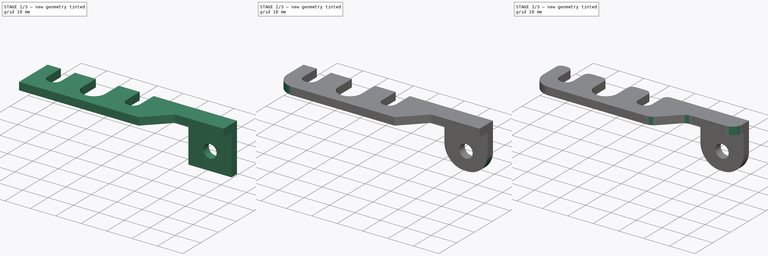
[diagram: build sequence overview — one tinted view per stage of 3, left to right]
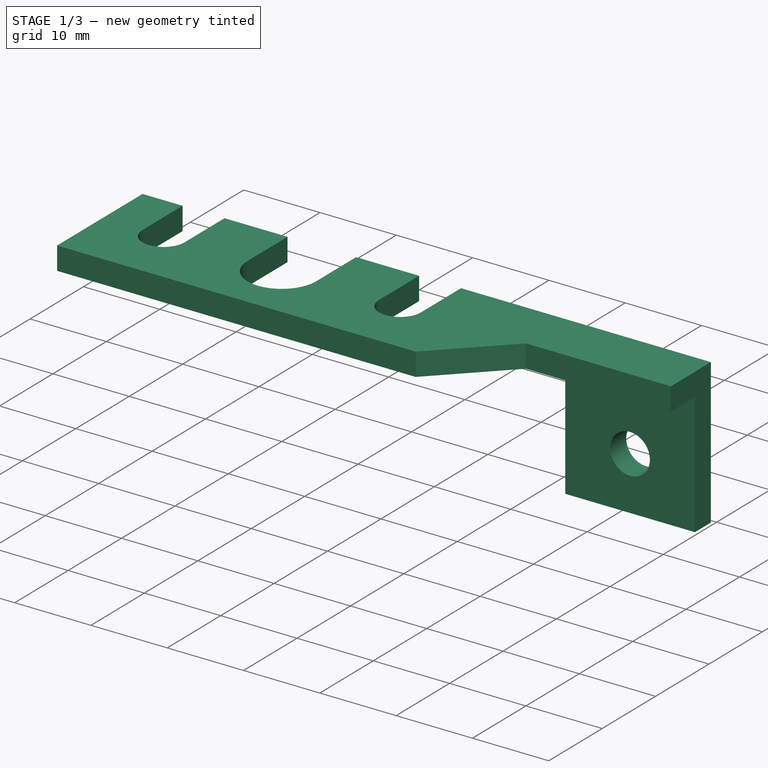
[diagram: stage 1 of 3 — iso view after this stage's code; geometry added in this stage tinted green]
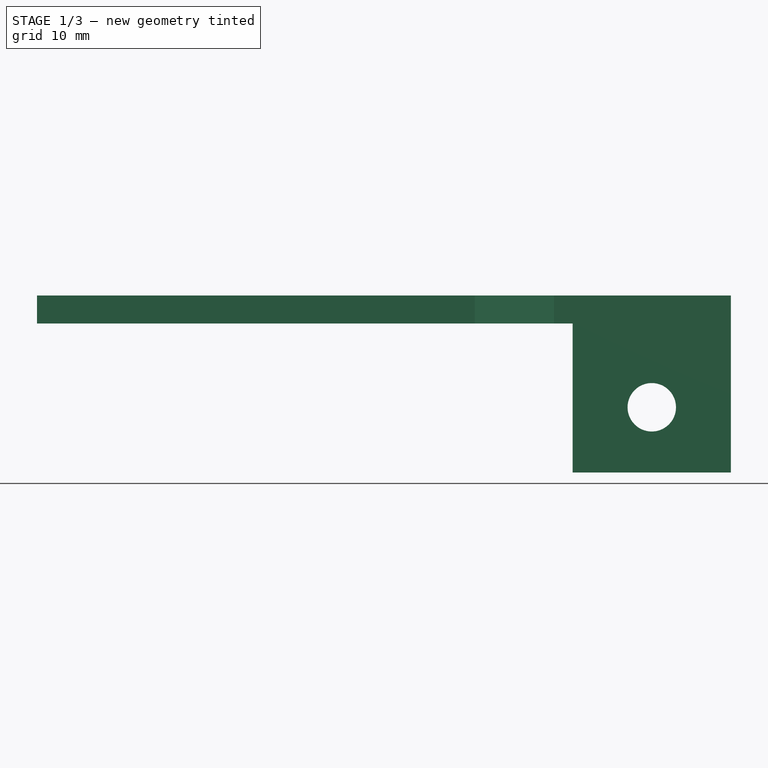
[diagram: stage 1 of 3 — front view after this stage's code; geometry added in this stage tinted green]
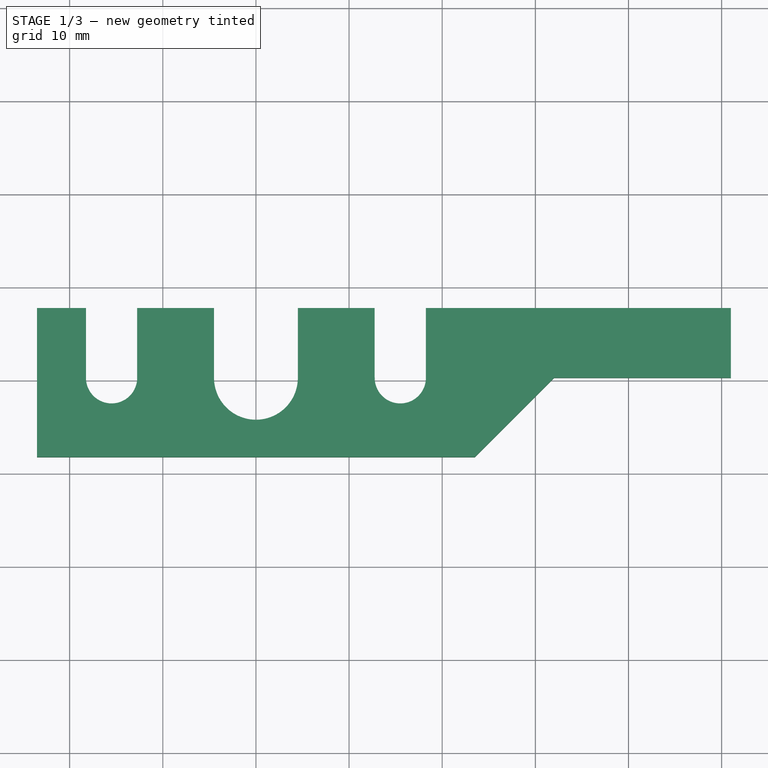
[diagram: stage 1 of 3 — top view after this stage's code; geometry added in this stage tinted green]
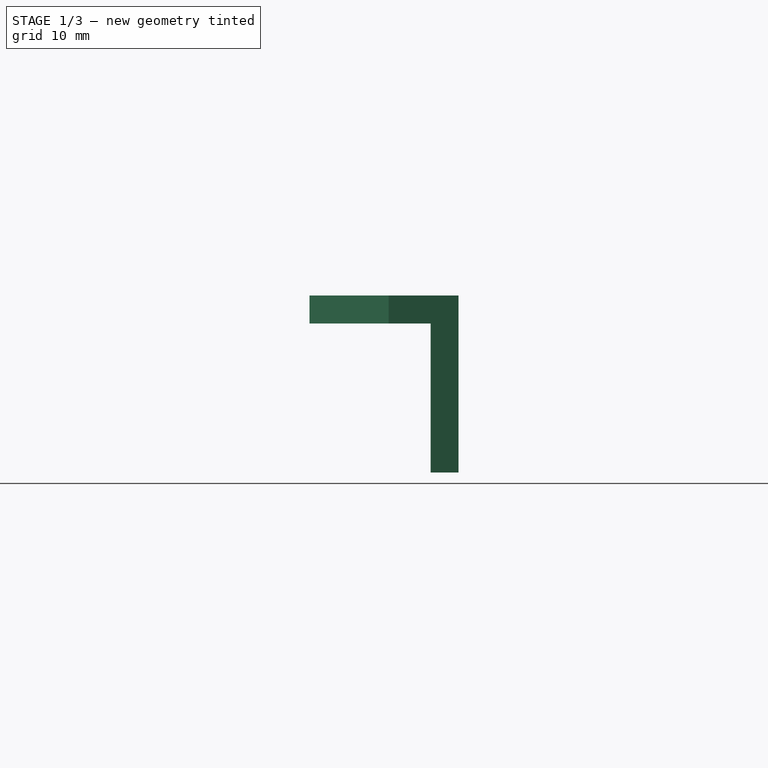
[diagram: stage 1 of 3 — right view after this stage's code; geometry added in this stage tinted green]
FCSTD DOCUMENT  (FreeCAD 0.19R24276 (Git))
Label: Endpoint_holder
License: All rights reserved
LicenseURL: http://en.wikipedia.org/wiki/All_rights_reserved
objects: PartDesign::Fillet×5, Sketcher::SketchObject×3, PartDesign::Pad×2, PartDesign::Pocket×1, PartDesign::Body×1
note: 20 computed .brp shape members not serialized (recipe doc carries the construction recipe); baked Part::Feature solids carry a one-line shape summary decoded from their .brp

FEATURE [Sketcher::SketchObject] Sketch
  FullyConstrained = true
  MapMode = 5
  Support = -> [XY_Plane]
  sketch-geometry (23):
    g0: Circle CenterX=0 CenterY=0 CenterZ=0 NormalX=0 NormalY=0 NormalZ=1 AngleXU=0 Radius=25
    g1: ArcOfCircle CenterX=0 CenterY=0 CenterZ=0 NormalX=0 NormalY=0 NormalZ=1 AngleXU=0 Radius=4.5 StartAngle=3.14159 EndAngle=6.28319
    g2: ArcOfCircle CenterX=-15.5 CenterY=3e-16 CenterZ=0 NormalX=0 NormalY=0 NormalZ=1 AngleXU=0 Radius=2.75 StartAngle=3.14159 EndAngle=6.28319
    g3: ArcOfCircle CenterX=15.5 CenterY=0 CenterZ=0 NormalX=0 NormalY=0 NormalZ=1 AngleXU=0 Radius=2.75 StartAngle=3.14159 EndAngle=6.28319
    g4: LineSegment StartX=-23.5 StartY=7.5 StartZ=0 EndX=-18.25 EndY=7.5 EndZ=0
    g5: LineSegment StartX=-23.5 StartY=7.5 StartZ=0 EndX=-23.5 EndY=-8.5 EndZ=0
    g6: LineSegment StartX=-23.5 StartY=-8.5 StartZ=0 EndX=23.5 EndY=-8.5 EndZ=0
    g7: LineSegment StartX=-18.25 StartY=3e-16 StartZ=0 EndX=-18.25 EndY=7.5 EndZ=0
    g8: LineSegment StartX=-12.75 StartY=3e-16 StartZ=0 EndX=-12.75 EndY=7.5 EndZ=0
    g9: LineSegment StartX=12.75 StartY=0 StartZ=0 EndX=12.75 EndY=7.5 EndZ=0
    g10: LineSegment StartX=18.25 StartY=0 StartZ=0 EndX=18.25 EndY=7.5 EndZ=0
    g11: LineSegment StartX=-15.5 StartY=3e-16 StartZ=0 EndX=-18.25 EndY=3e-16 EndZ=0
    g12: LineSegment StartX=-12.75 StartY=7.5 StartZ=0 EndX=-4.5 EndY=7.5 EndZ=0
    g13: LineSegment StartX=18.25 StartY=7.5 StartZ=0 EndX=51 EndY=7.5 EndZ=0
    g14: LineSegment StartX=15.5 StartY=0 StartZ=0 EndX=18.25 EndY=0 EndZ=0
    g15: LineSegment StartX=15.5 StartY=0 StartZ=0 EndX=12.75 EndY=0 EndZ=0
    g16: LineSegment StartX=-15.5 StartY=3e-16 StartZ=0 EndX=-12.75 EndY=3e-16 EndZ=0
    g17: LineSegment StartX=51 StartY=0 StartZ=0 EndX=51 EndY=7.5 EndZ=0
    g18: LineSegment StartX=23.5 StartY=-8.5 StartZ=0 EndX=32 EndY=0 EndZ=0
    g19: LineSegment StartX=32 StartY=0 StartZ=0 EndX=51 EndY=0 EndZ=0
    g20: LineSegment StartX=-4.5 StartY=-1.1e-15 StartZ=0 EndX=-4.5 EndY=7.5 EndZ=0
    g21: LineSegment StartX=4.5 StartY=-1.1e-15 StartZ=0 EndX=4.5 EndY=7.5 EndZ=0
    g22: LineSegment StartX=4.5 StartY=7.5 StartZ=0 EndX=12.75 EndY=7.5 EndZ=0
  constraints (62):
    c: Coincident(g0,g-1)
    c: Diameter(g0) = 50
    c: Coincident(g1,g-1)
    c: Diameter(g1) = 9
    c: PointOnObject(g2,g-1)
    c: Symmetric(g2,g3,g-1)
    c: Diameter(g2) = 5.5
    c: Equal(g2,g3)
    c: DistanceX(g2,g3) = 31
    c: Horizontal(g4)
    c: Coincident(g5,g4)
    c: Vertical(g5)
    c: Coincident(g6,g5)
    c: Horizontal(g6)
    c: DistanceY(g5,g4) = 16
    c: Vertical(g7)
    c: Vertical(g9)
    c: Vertical(g10)
    c: Coincident(g11,g2)
    c: Coincident(g11,g7)
    c: Horizontal(g11)
    c: Vertical(g8)
    c: Coincident(g4,g7)
    c: Coincident(g12,g8)
    c: Tangent(g4,g12)
    c: Tangent(g12,g13)
    c: Coincident(g9,g22)
    c: Coincident(g10,g13)
    c: Coincident(g14,g3)
    c: Coincident(g14,g10)
    c: Horizontal(g14)
    c: Coincident(g15,g3)
    c: Coincident(g9,g15)
    c: Horizontal(g15)
    c: Coincident(g16,g2)
    c: Coincident(g8,g16)
    c: Horizontal(g16)
    c: DistanceX(g5,g2) = 8
    c: Vertical(g17)
    c: Coincident(g18,g6)
    c: Coincident(g19,g18)
    c: Horizontal(g19)
    c: Coincident(g17,g13)
    c: Coincident(g17,g19)
    c: DistanceX(g-1,g17) = 51
    c: Horizontal(g18,g3)
    c: Angle(g18,g6) = 2.35619
    c: DistanceX(g3,g6) = 8
    c: Vertical(g20)
    c: Vertical(g21)
    c: Horizontal(g20,g21)
    c: Horizontal(g21,g-1)
    c: Tangent(g12,g22)
    c: Coincident(g20,g12)
    c: Coincident(g21,g22)
    c: Coincident(g1,g20)
    c: Coincident(g1,g21)
    c: Coincident(g2,g8)
    c: Coincident(g3,g9)
    c: Coincident(g3,g10)
    c: Coincident(g2,g7)
    c: DistanceY(g5,g2) = 8.5
FEATURE [PartDesign::Pad] Pad
  Direction = (1,1,1)
  Length = 3
  Length2 = 100
  Profile = -> Sketch
  Type = 0
FEATURE [Sketcher::SketchObject] Sketch001
  FullyConstrained = true
  MapMode = 5
  Placement = pos=(0,0,0) rot=(1,0,0;3.14159rad)
  Support = -> [Pad]
  sketch-geometry (4):
    g0: LineSegment StartX=34 StartY=-4.5 StartZ=0 EndX=51 EndY=-4.5 EndZ=0
    g1: LineSegment StartX=51 StartY=-4.5 StartZ=0 EndX=51 EndY=-7.5 EndZ=0
    g2: LineSegment StartX=51 StartY=-7.5 StartZ=0 EndX=34 EndY=-7.5 EndZ=0
    g3: LineSegment StartX=34 StartY=-7.5 StartZ=0 EndX=34 EndY=-4.5 EndZ=0
  constraints (12):
    c: Coincident(g0,g1)
    c: Coincident(g1,g2)
    c: Coincident(g2,g3)
    c: Coincident(g3,g0)
    c: Horizontal(g0)
    c: Horizontal(g2)
    c: Vertical(g1)
    c: Vertical(g3)
    c: DistanceX(g-1,g2) = 34
    c: DistanceX(g-1,g1) = 51
    c: DistanceY(g2,g-1) = 7.5
    c: DistanceY(g2,g0) = 3
FEATURE [PartDesign::Pad] Pad001
  BaseFeature = -> Pad
  Direction = (1,1,1)
  Length = 16
  Length2 = 100
  Profile = -> Sketch001
  Type = 0
FEATURE [Sketcher::SketchObject] Sketch002
  FullyConstrained = true
  MapMode = 5
  Placement = pos=(0,4.5,0) rot=(1,0,0;1.5708rad)
  Support = -> [Pad001]
  sketch-geometry (2):
    g0: Circle CenterX=42.5 CenterY=-9 CenterZ=0 NormalX=0 NormalY=0 NormalZ=1 AngleXU=0 Radius=2.6
    g1: Circle CenterX=42.5 CenterY=-9 CenterZ=0 NormalX=0 NormalY=0 NormalZ=1 AngleXU=0 Radius=4.5
  constraints (5):
    c: Diameter(g0) = 5.2
    c: DistanceX(g-1,g0) = 42.5
    c: DistanceY(g0,g-1) = 9
    c: Coincident(g1,g0)
    c: Diameter(g1) = 9
FEATURE [PartDesign::Pocket] Pocket
  BaseFeature = -> Pad001
  Length = 5
  Length2 = 100
  Profile = -> Sketch002
  Type = 1
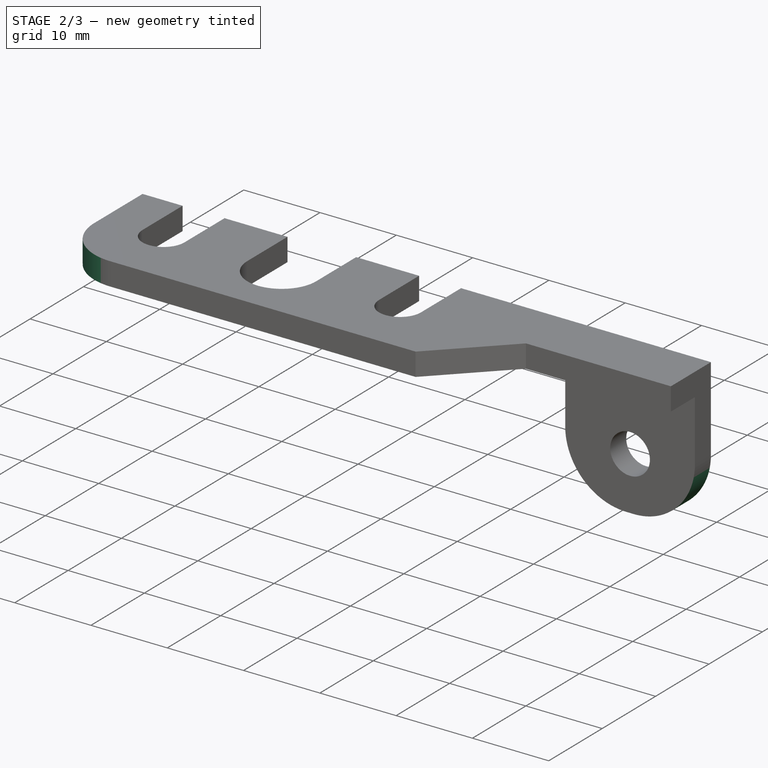
[diagram: stage 2 of 3 — iso view after this stage's code; geometry added in this stage tinted green]
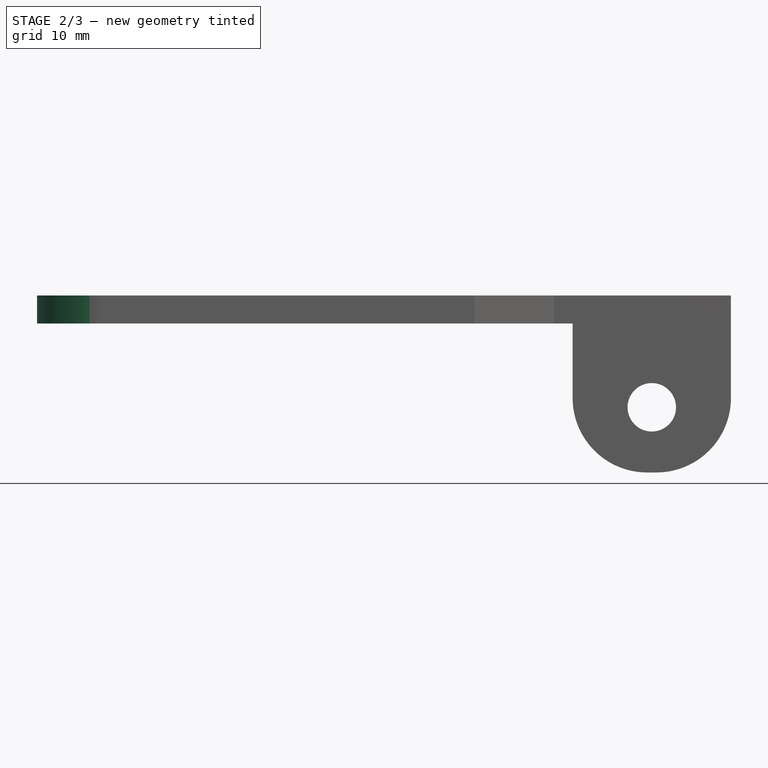
[diagram: stage 2 of 3 — front view after this stage's code; geometry added in this stage tinted green]
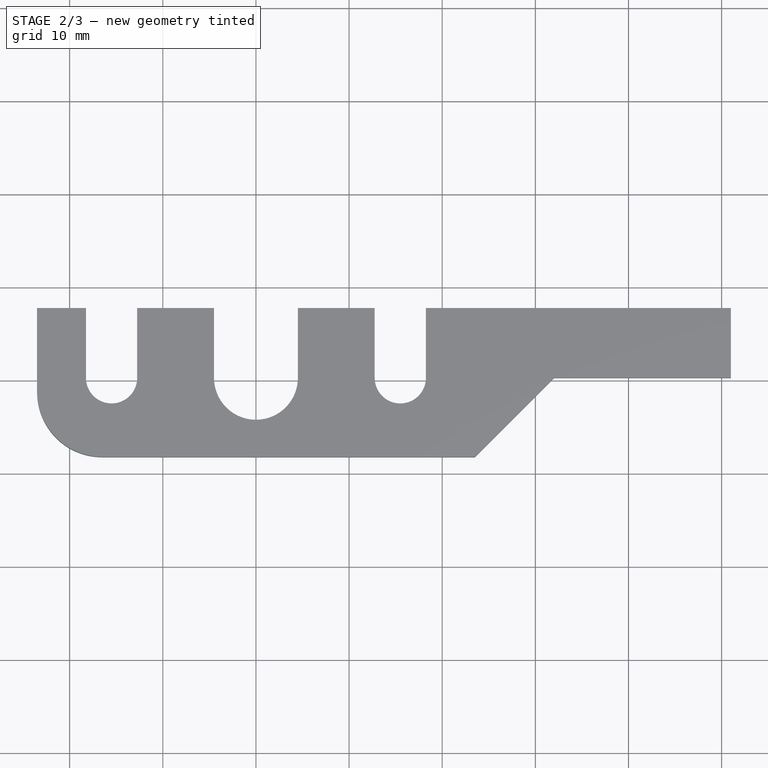
[diagram: stage 2 of 3 — top view after this stage's code; geometry added in this stage tinted green]
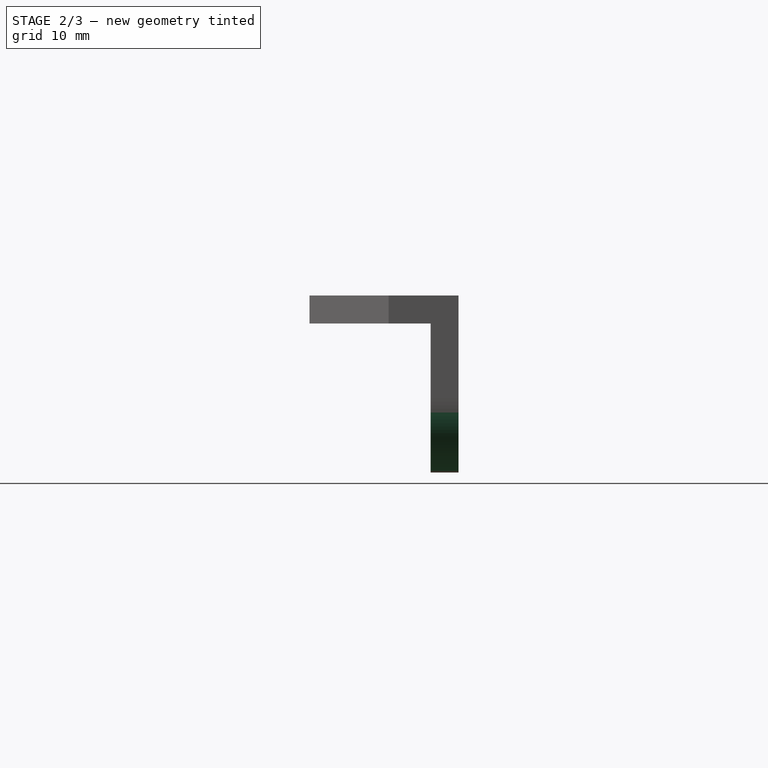
[diagram: stage 2 of 3 — right view after this stage's code; geometry added in this stage tinted green]
FEATURE [PartDesign::Fillet] Fillet
  Base = -> Pocket [Edge56,Edge66]
  BaseFeature = -> Pocket
  Radius = 8
  SupportTransform = false
FEATURE [PartDesign::Fillet] Fillet002
  Base = -> Fillet [Edge45]
  BaseFeature = -> Fillet
  Radius = 7
  SupportTransform = false
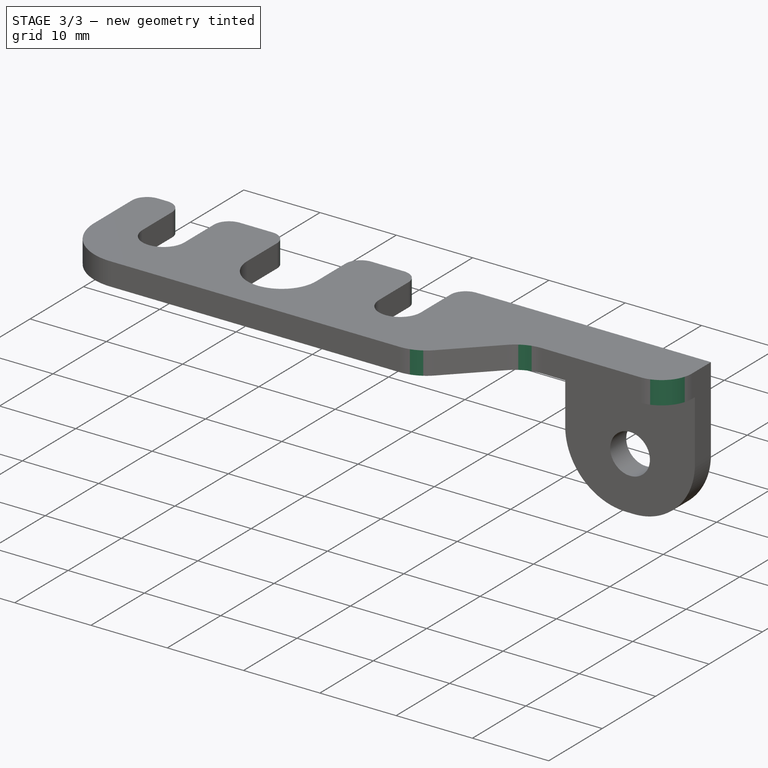
[diagram: stage 3 of 3 — iso view after this stage's code; geometry added in this stage tinted green]
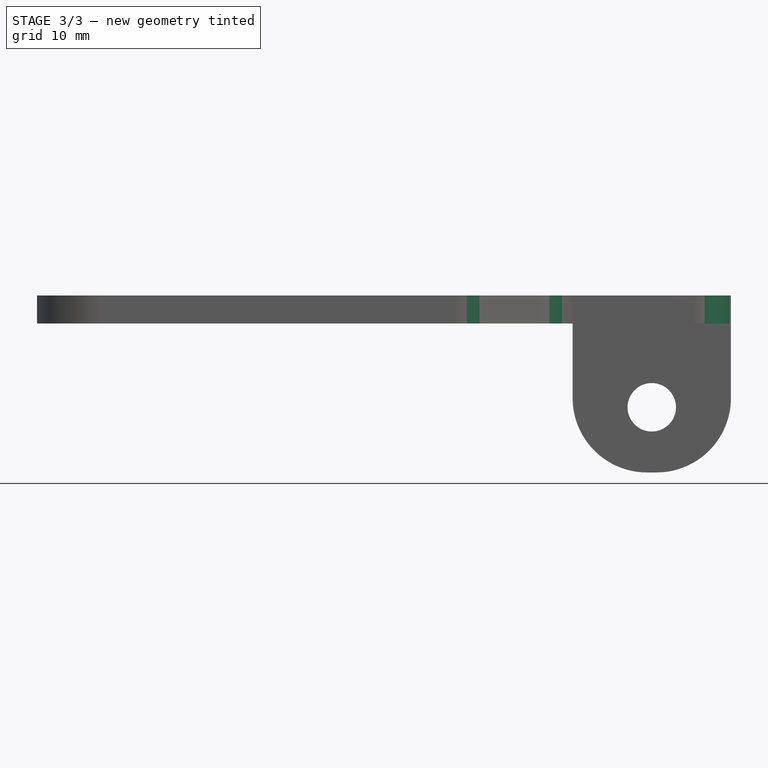
[diagram: stage 3 of 3 — front view after this stage's code; geometry added in this stage tinted green]
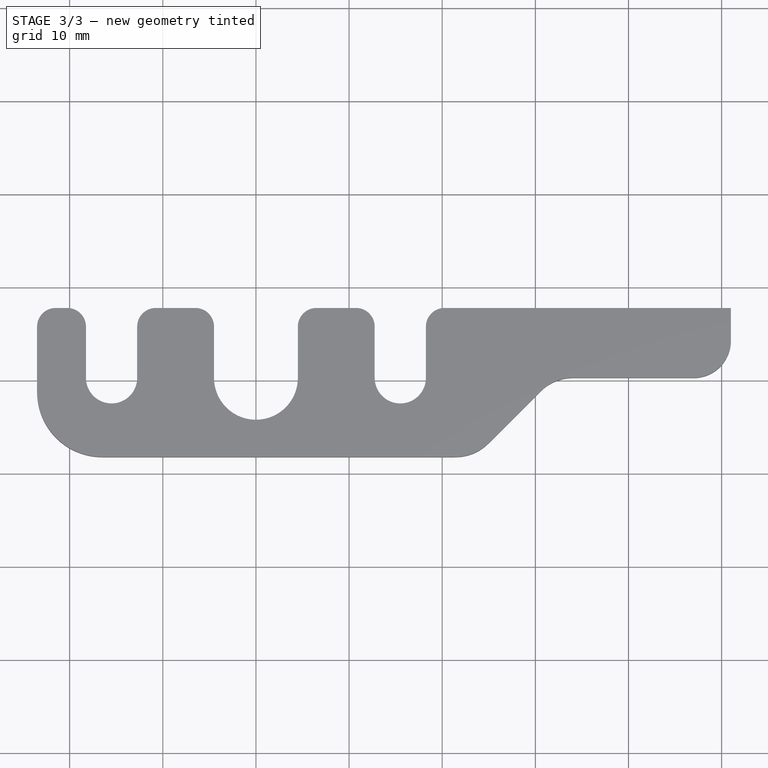
[diagram: stage 3 of 3 — top view after this stage's code; geometry added in this stage tinted green]
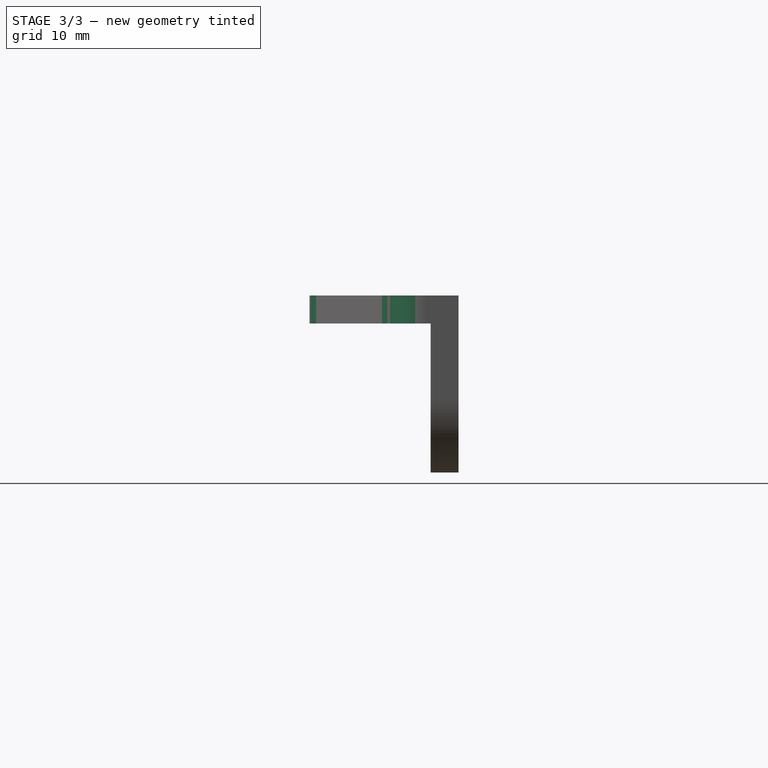
[diagram: stage 3 of 3 — right view after this stage's code; geometry added in this stage tinted green]
FEATURE [PartDesign::Fillet] Fillet003
  Base = -> Fillet002 [Edge37]
  BaseFeature = -> Fillet002
  Radius = 4
  SupportTransform = false
FEATURE [PartDesign::Fillet] Fillet004
  Base = -> Fillet003 [Edge28,Edge24]
  BaseFeature = -> Fillet003
  Radius = 5
  SupportTransform = false
FEATURE [PartDesign::Fillet] Fillet005
  Base = -> Fillet004 [Edge54,Edge58,Edge70,Edge74,Edge68,Edge64,Edge51]
  BaseFeature = -> Fillet004
  Radius = 2
  SupportTransform = false
FEATURE [PartDesign::Body] Body
  Group = -> [Sketch,Pad,Sketch001,Pad001,Sketch002,Pocket,Fillet,Fillet002,Fillet003,Fillet004,Fillet005]
  Origin = -> Origin
  Tip = -> Fillet005
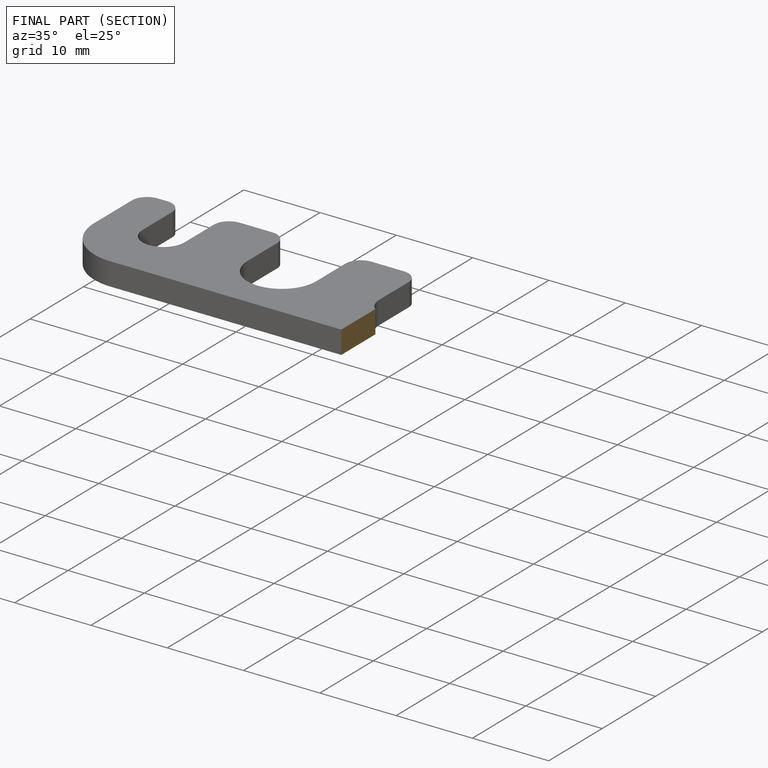
[diagram: finished part — half-section view (interior)]
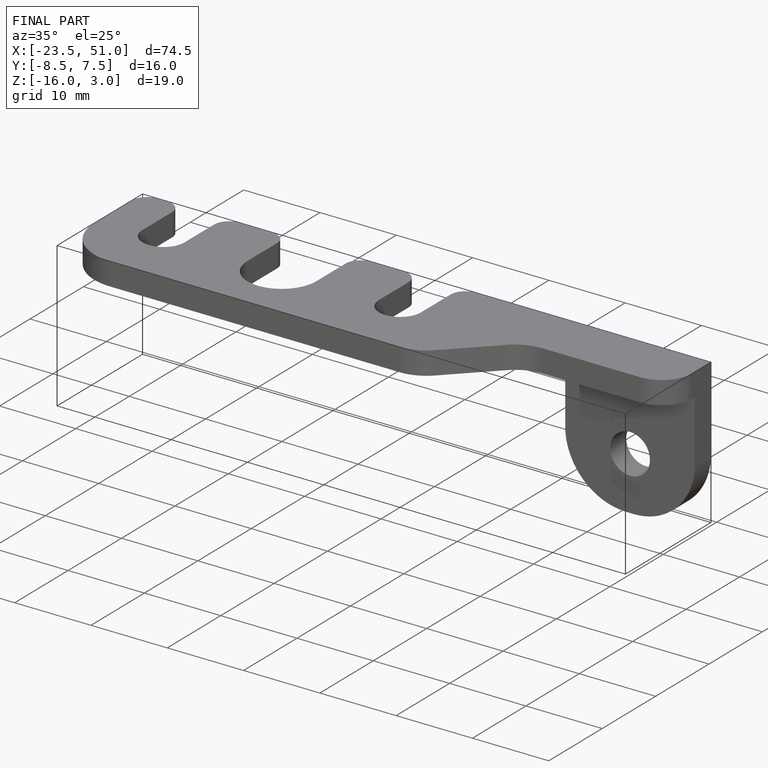
[diagram: finished part — iso view with bounding-box wireframe]
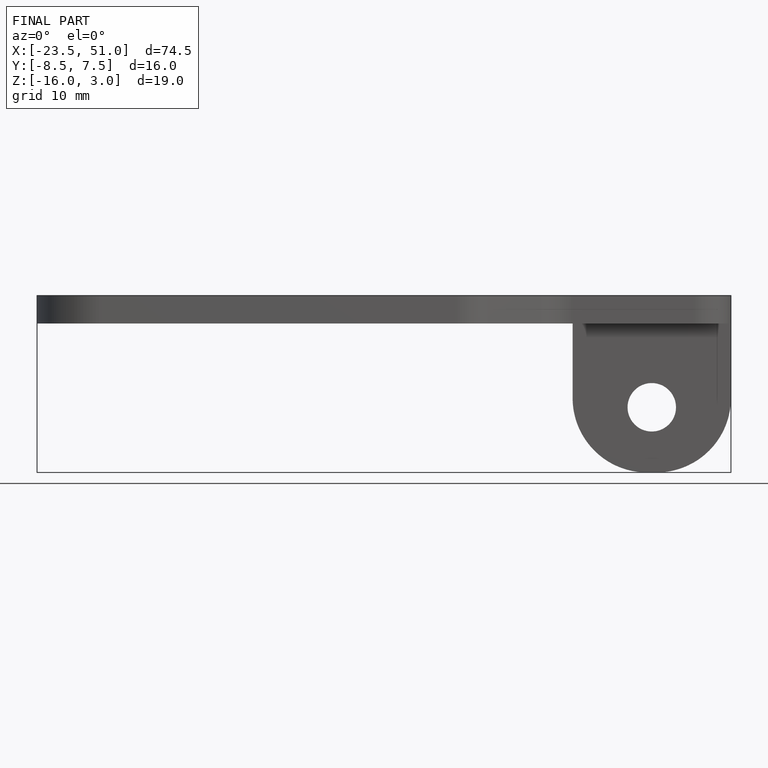
[diagram: finished part — front view with bounding-box wireframe]
